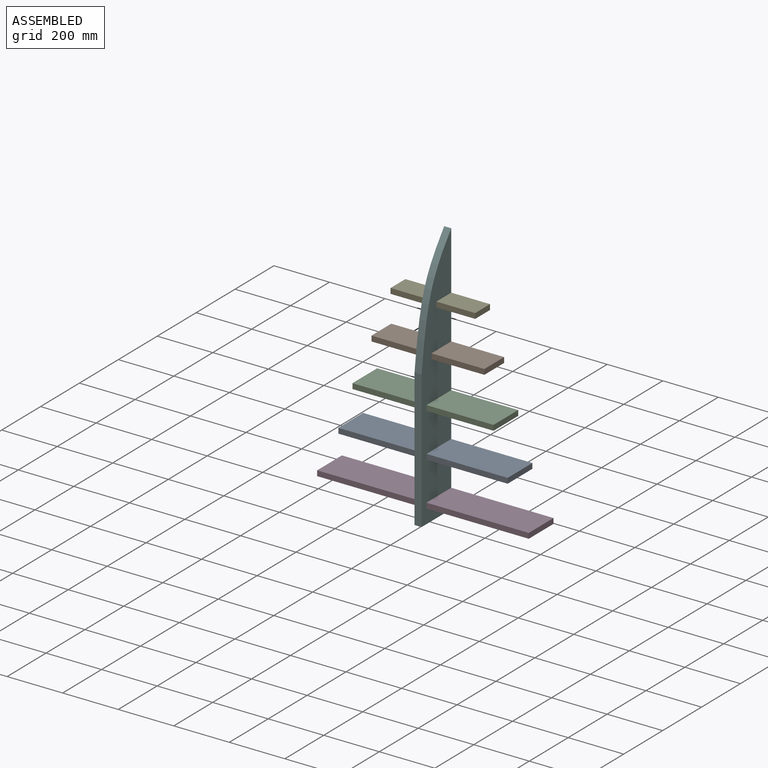
[diagram: assembled view]
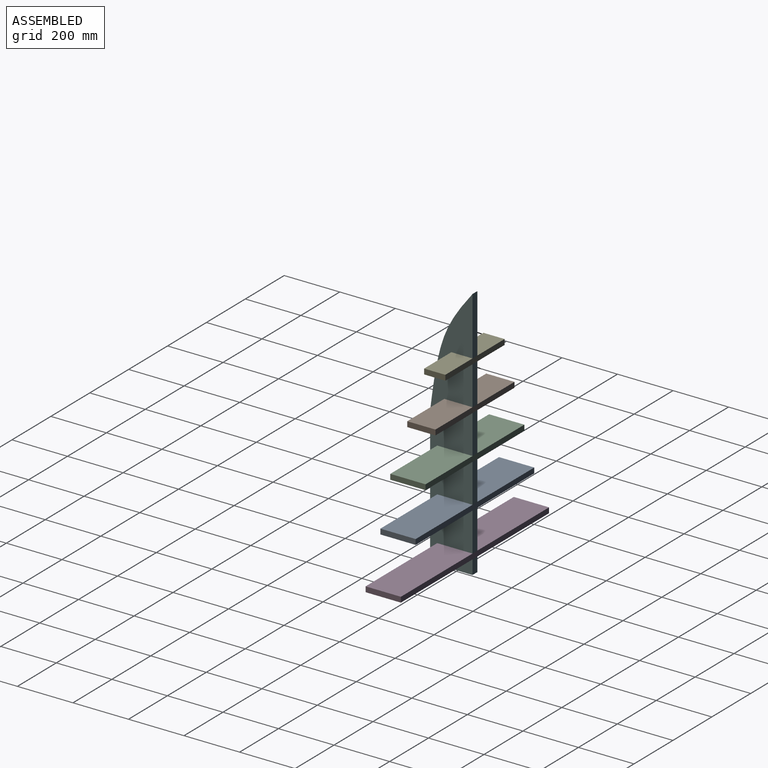
[diagram: assembled view, second angle]
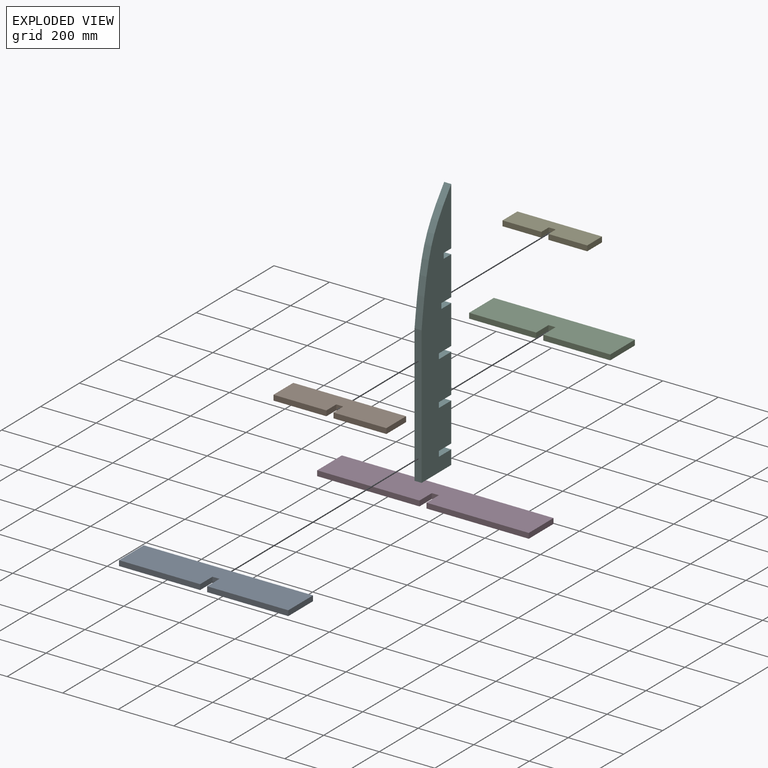
[diagram: exploded view]
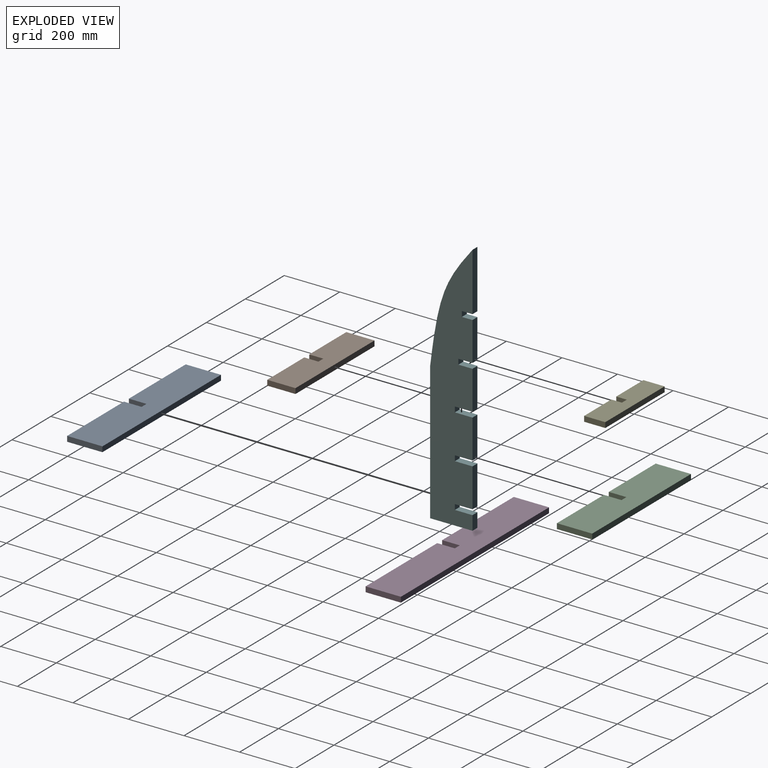
[diagram: exploded view, second angle]
ASSEMBLY  parts=6 mates=5
PART A: 10 faces, bbox 609.6x127x19.1 mm
  f0: plane 292.1x19.05mm, normal (0,-1,0), area 5564.5mm2, adj f1,f2,f3,f7
  f1: plane 609.6x127mm, normal (0,0,-1), area 75806.3mm2, adj f0,f3,f4,f5,f6,f7,f8,f9
  f2: plane 609.6x127mm, normal (0,0,1), area 75806.3mm2, adj f0,f3,f4,f5,f6,f7,f8,f9
  f3: plane 127x19.05mm, normal (-1,0,0), area 2419.4mm2, adj f0,f1,f2,f5
  f4: plane 127x19.05mm, normal (1,0,0), area 2419.4mm2, adj f1,f2,f5,f6
  f5: plane 609.6x19.05mm, normal (0,1,0), area 11612.9mm2, adj f1,f2,f3,f4
  f6: plane 292.1x19.05mm, normal (0,-1,0), area 5564.5mm2, adj f1,f2,f4,f8
  f7: plane 63.5x19.05mm, normal (1,0,0), area 1209.7mm2, adj f0,f1,f2,f9
  f8: plane 63.5x19.05mm, normal (-1,0,0), area 1209.7mm2, adj f1,f2,f6,f9
  f9: plane 25.4x19.05mm, normal (0,-1,0), area 483.9mm2, adj f1,f2,f7,f8
PART B: 10 faces, bbox 406.4x101.6x19.1 mm
  f0: plane 190.5x19.05mm, normal (0,-1,0), area 3629mm2, adj f1,f2,f3,f7
  f1: plane 406.4x101.6mm, normal (0,0,-1), area 39999.9mm2, adj f0,f3,f4,f5,f6,f7,f8,f9
  f2: plane 406.4x101.6mm, normal (0,0,1), area 39999.9mm2, adj f0,f3,f4,f5,f6,f7,f8,f9
  f3: plane 101.6x19.05mm, normal (-1,0,0), area 1935.5mm2, adj f0,f1,f2,f5
  f4: plane 101.6x19.05mm, normal (1,0,0), area 1935.5mm2, adj f1,f2,f5,f6
  f5: plane 406.4x19.05mm, normal (0,1,0), area 7741.9mm2, adj f1,f2,f3,f4
  f6: plane 190.5x19.05mm, normal (0,-1,0), area 3629mm2, adj f1,f2,f4,f8
  f7: plane 50.8x19.05mm, normal (1,0,0), area 967.7mm2, adj f0,f1,f2,f9
  f8: plane 50.8x19.05mm, normal (-1,0,0), area 967.7mm2, adj f1,f2,f6,f9
  f9: plane 25.4x19.05mm, normal (0,-1,0), area 483.9mm2, adj f1,f2,f7,f8
PART C: 10 faces, bbox 508x127x19.1 mm
  f0: plane 241.3x19.05mm, normal (0,-1,0), area 4596.8mm2, adj f1,f2,f3,f7
  f1: plane 508x127mm, normal (0,0,-1), area 62903.1mm2, adj f0,f3,f4,f5,f6,f7,f8,f9
  f2: plane 508x127mm, normal (0,0,1), area 62903.1mm2, adj f0,f3,f4,f5,f6,f7,f8,f9
  f3: plane 127x19.05mm, normal (-1,0,0), area 2419.4mm2, adj f0,f1,f2,f5
  f4: plane 127x19.05mm, normal (1,0,0), area 2419.4mm2, adj f1,f2,f5,f6
  f5: plane 508x19.05mm, normal (0,1,0), area 9677.4mm2, adj f1,f2,f3,f4
  f6: plane 241.3x19.05mm, normal (0,-1,0), area 4596.8mm2, adj f1,f2,f4,f8
  f7: plane 63.5x19.05mm, normal (1,0,0), area 1209.7mm2, adj f0,f1,f2,f9
  f8: plane 63.5x19.05mm, normal (-1,0,0), area 1209.7mm2, adj f1,f2,f6,f9
  f9: plane 25.4x19.05mm, normal (0,-1,0), area 483.9mm2, adj f1,f2,f7,f8
PART D: 10 faces, bbox 762x127x19.1 mm
  f0: plane 368.3x19.05mm, normal (0,-1,0), area 7016.1mm2, adj f1,f2,f4,f7
  f1: plane 762x127mm, normal (0,0,1), area 95161.1mm2, adj f0,f3,f4,f5,f6,f7,f8,f9
  f2: plane 762x127mm, normal (0,0,-1), area 95161.1mm2, adj f0,f3,f4,f5,f6,f7,f8,f9
  f3: plane 127x19.05mm, normal (1,0,0), area 2419.3mm2, adj f1,f2,f5,f6
  f4: plane 127x19.05mm, normal (-1,0,0), area 2419.3mm2, adj f0,f1,f2,f5
  f5: plane 762x19.05mm, normal (0,1,0), area 14516.1mm2, adj f1,f2,f3,f4
  f6: plane 368.3x19.05mm, normal (0,-1,0), area 7016.1mm2, adj f1,f2,f3,f8
  f7: plane 63.5x19.05mm, normal (1,0,0), area 1209.7mm2, adj f0,f1,f2,f9
  f8: plane 63.5x19.05mm, normal (-1,0,0), area 1209.7mm2, adj f1,f2,f6,f9
  f9: plane 25.4x19.05mm, normal (0,-1,0), area 483.9mm2, adj f1,f2,f7,f8
PART E: 10 faces, bbox 304.8x76.2x19.1 mm
  f0: plane 139.7x19.05mm, normal (0,-1,0), area 2661.3mm2, adj f1,f2,f3,f7
  f1: plane 304.8x76.2mm, normal (0,0,-1), area 22258mm2, adj f0,f3,f4,f5,f6,f7,f8,f9
  f2: plane 304.8x76.2mm, normal (0,0,1), area 22258mm2, adj f0,f3,f4,f5,f6,f7,f8,f9
  f3: plane 76.2x19.05mm, normal (-1,0,0), area 1451.6mm2, adj f0,f1,f2,f5
  f4: plane 76.2x19.05mm, normal (1,0,0), area 1451.6mm2, adj f1,f2,f5,f6
  f5: plane 304.8x19.05mm, normal (0,1,0), area 5806.4mm2, adj f1,f2,f3,f4
  f6: plane 139.7x19.05mm, normal (0,-1,0), area 2661.3mm2, adj f1,f2,f4,f8
  f7: plane 38.1x19.05mm, normal (1,0,0), area 725.8mm2, adj f0,f1,f2,f9
  f8: plane 38.1x19.05mm, normal (-1,0,0), area 725.8mm2, adj f1,f2,f6,f9
  f9: plane 25.4x19.05mm, normal (0,-1,0), area 483.9mm2, adj f1,f2,f7,f8
PART F: 26 faces, bbox 25.4x152.4x914.4 mm
  f0: plane 63.5x25.4mm, normal (0,0,-1), area 1612.9mm2, adj f1,f23,f24,f25
  f1: plane 139.7x25.4mm, normal (0,1,0), area 3548.4mm2, adj f0,f2,f24,f25
  f2: plane 50.8x25.4mm, normal (0,0,1), area 1290.3mm2, adj f1,f3,f24,f25
  f3: plane 25.4x19.05mm, normal (0,1,0), area 483.9mm2, adj f2,f4,f24,f25
  f4: plane 50.8x25.4mm, normal (0,0,-1), area 1290.3mm2, adj f3,f5,f24,f25
  f5: plane 139.7x25.4mm, normal (0,1,0), area 3548.4mm2, adj f4,f6,f24,f25
  f6: plane 38.1x25.4mm, normal (0,0,1), area 967.7mm2, adj f5,f7,f24,f25
  f7: plane 25.4x19.05mm, normal (0,1,0), area 483.9mm2, adj f6,f8,f24,f25
  f8: plane 38.1x25.4mm, normal (0,0,-1), area 967.7mm2, adj f7,f9,f24,f25
  f9: plane 209.55x25.4mm, normal (0,1,0), area 5322.6mm2, adj f8,f10,f24,f25
  f10: extruded ~418.17x152.4mm, area 11521.3mm2, adj f9,f11,f24,f25
  f11: plane 496.23x25.4mm, normal (0,-1,0), area 12604.4mm2, adj f10,f12,f24,f25
  f12: plane 152.4x25.4mm, normal (0,0,-1), area 3871mm2, adj f11,f13,f24,f25
  f13: plane 50.8x25.4mm, normal (0,1,0), area 1290.3mm2, adj f12,f14,f24,f25
  f14: plane 63.5x25.4mm, normal (0,0,1), area 1612.9mm2, adj f13,f15,f24,f25
  f15: plane 25.4x19.05mm, normal (0,1,0), area 483.9mm2, adj f14,f16,f24,f25
  f16: plane 63.5x25.4mm, normal (0,0,-1), area 1612.9mm2, adj f15,f17,f24,f25
  f17: plane 139.7x25.4mm, normal (0,1,0), area 3548.4mm2, adj f16,f18,f24,f25
  f18: plane 63.5x25.4mm, normal (0,0,1), area 1612.9mm2, adj f17,f19,f24,f25
  f19: plane 25.4x19.05mm, normal (0,1,0), area 483.9mm2, adj f18,f20,f24,f25
  f20: plane 63.5x25.4mm, normal (0,0,-1), area 1612.9mm2, adj f19,f21,f24,f25
  f21: plane 139.7x25.4mm, normal (0,1,0), area 3548.4mm2, adj f20,f22,f24,f25
  f22: plane 63.5x25.4mm, normal (0,0,1), area 1612.9mm2, adj f21,f23,f24,f25
  f23: plane 25.4x19.05mm, normal (0,1,0), area 483.9mm2, adj f0,f22,f24,f25
  f24: plane 914.4x152.4mm, normal (1,0,0), area 113165.8mm2, adj f0,f1,f2,f3,f4,f5,f6,f7
  f25: plane 914.4x152.4mm, normal (-1,0,0), area 113165.8mm2, adj f0,f1,f2,f3,f4,f5,f6,f7
PLACE A t=(12.7,-50.8,-396.88)mm
PLACE B t=(12.7,-25.4,-396.88)mm
PLACE C t=(12.7,-50.8,-396.88)mm
PLACE D t=(12.7,-50.8,-396.88)mm
PLACE E t=(12.7,0,-396.88)mm
PLACE F at identity
MATE planar D.f9 <-> F.f15  axis (0,-1,0) through (12.7,12.7,-396.88)mm
MATE planar B.f9 <-> F.f3  axis (0,-1,0) through (12.7,25.4,79.37)mm
MATE planar E.f9 <-> F.f7  axis (0,-1,0) through (12.7,38.1,238.12)mm
MATE planar A.f9 <-> F.f19  axis (0,-1,0) through (12.7,12.7,-238.13)mm
MATE planar C.f9 <-> F.f23  axis (0,-1,0) through (12.7,12.7,-79.38)mm
